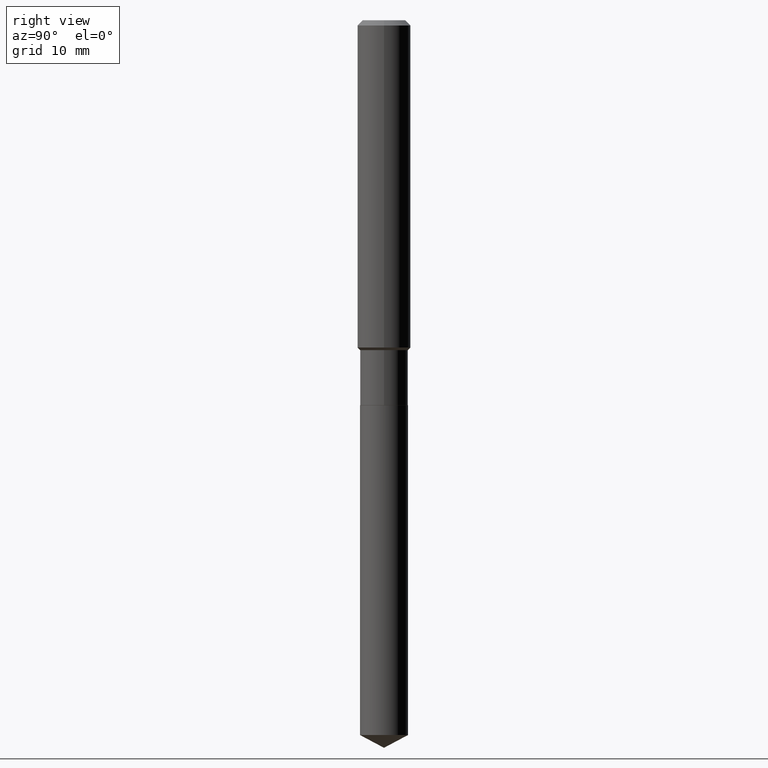
[diagram: clean part render]
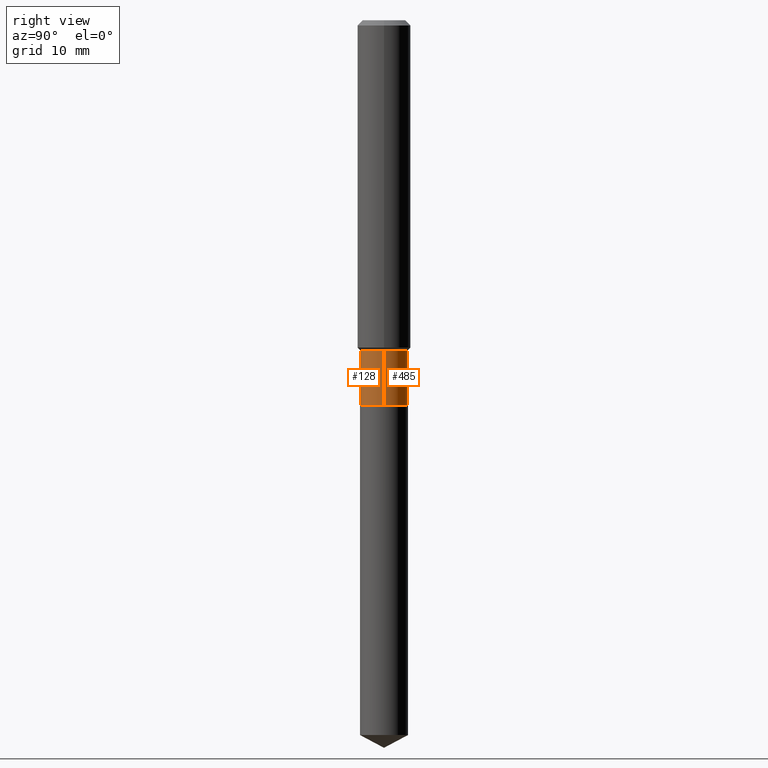
[diagram: same view with one multi-face feature highlighted, each face labeled with its STEP entity id]
A machine part, right view. The highlighted faces form ONE feature: a constant-radius fillet chain: 2 tangent blend faces with common blend radius 2.7 mm. The faces share edges in the B-rep.
Their STEP definitions:
[1] entity #128 (Cylinder):
#9 = LINE ( 'NONE', #266, #476 ) ;
#39 = DIRECTION ( 'NONE',  ( -2.445468806185136877E-29, 3.491481338843145188E-15, 1.000000000000000000 ) ) ;
#44 = DIRECTION ( 'NONE',  ( -2.445468806185136877E-29, 3.491481338843145188E-15, 1.000000000000000000 ) ) ;
#59 = ORIENTED_EDGE ( 'NONE', *, *, #395, .T. ) ;
#76 = LINE ( 'NONE', #224, #271 ) ;
#77 = DIRECTION ( 'NONE',  ( -2.445468806185136597E-29, 3.491481338843145583E-15, 1.000000000000000000 ) ) ;
#91 = CARTESIAN_POINT ( 'NONE',  ( -0.1062999999999999640, -4.782531623426127570E-15, -1.464100000000000179 ) ) ;
#112 = VERTEX_POINT ( 'NONE', #91 ) ;
#117 = DIRECTION ( 'NONE',  ( -2.445468806185136597E-29, 3.491481338843145583E-15, 1.000000000000000000 ) ) ;
#128 = ADVANCED_FACE ( 'NONE', ( #408 ), #189, .T. ) ;
#154 = CARTESIAN_POINT ( 'NONE',  ( 0.000000000000000000, 0.000000000000000000, 0.000000000000000000 ) ) ;
#156 = VERTEX_POINT ( 'NONE', #292 ) ;
#157 = CARTESIAN_POINT ( 'NONE',  ( 0.1062999999999999640, -5.854166760838299626E-15, -1.464100000000000179 ) ) ;
#167 = ORIENTED_EDGE ( 'NONE', *, *, #260, .F. ) ;
#178 = DIRECTION ( 'NONE',  ( 1.000000000000000000, -6.982962677686267499E-15, 4.876176775795935232E-29 ) ) ;
#181 = AXIS2_PLACEMENT_3D ( 'NONE', #154, #77, #178 ) ;
#189 = CYLINDRICAL_SURFACE ( 'NONE', #181, 0.1062999999999999917 ) ;
#191 = AXIS2_PLACEMENT_3D ( 'NONE', #343, #228, #303 ) ;
#213 = CIRCLE ( 'NONE', #191, 0.1063000000000000056 ) ;
#224 = CARTESIAN_POINT ( 'NONE',  ( 0.1062999999999999917, -7.422889326380501387E-16, 5.183375912671078649E-30 ) ) ;
#228 = DIRECTION ( 'NONE',  ( -2.445468806185136597E-29, 3.491481338843145583E-15, 1.000000000000000000 ) ) ;
#260 = EDGE_CURVE ( 'NONE', #156, #112, #9, .T. ) ;
#266 = CARTESIAN_POINT ( 'NONE',  ( -0.1062999999999999917, 7.553069281129864387E-16, -5.228828000940964357E-30 ) ) ;
#271 = VECTOR ( 'NONE', #39, 39.37007874015748143 ) ;
#290 = ORIENTED_EDGE ( 'NONE', *, *, #483, .T. ) ;
#292 = CARTESIAN_POINT ( 'NONE',  ( -0.1063000000000000056, -4.782531623426127570E-15, -1.708100000000000174 ) ) ;
#297 = CARTESIAN_POINT ( 'NONE',  ( 0.1063000000000000056, -6.706088207516028077E-15, -1.708100000000000174 ) ) ;
#303 = DIRECTION ( 'NONE',  ( 1.000000000000000000, -6.982962677686269077E-15, 0.000000000000000000 ) ) ;
#323 = CIRCLE ( 'NONE', #380, 0.1062999999999999640 ) ;
#343 = CARTESIAN_POINT ( 'NONE',  ( 4.177105267844832684E-29, -5.963799274877977939E-15, -1.708100000000000174 ) ) ;
#358 = VERTEX_POINT ( 'NONE', #297 ) ;
#364 = EDGE_CURVE ( 'NONE', #112, #449, #323, .T. ) ;
#380 = AXIS2_PLACEMENT_3D ( 'NONE', #450, #117, #486 ) ;
#395 = EDGE_CURVE ( 'NONE', #358, #449, #76, .T. ) ;
#398 = ORIENTED_EDGE ( 'NONE', *, *, #364, .F. ) ;
#408 = FACE_OUTER_BOUND ( 'NONE', #475, .T. ) ;
#449 = VERTEX_POINT ( 'NONE', #157 ) ;
#450 = CARTESIAN_POINT ( 'NONE',  ( 3.580410879135658789E-29, -5.111877828200250276E-15, -1.464100000000000179 ) ) ;
#475 = EDGE_LOOP ( 'NONE', ( #167, #290, #59, #398 ) ) ;
#476 = VECTOR ( 'NONE', #44, 39.37007874015748143 ) ;
#483 = EDGE_CURVE ( 'NONE', #156, #358, #213, .T. ) ;
#486 = DIRECTION ( 'NONE',  ( 1.000000000000000000, -6.982962677686263555E-15, 0.000000000000000000 ) ) ;
[2] entity #485 (Cylinder):
#2 = CIRCLE ( 'NONE', #230, 0.1063000000000000056 ) ;
#7 = ORIENTED_EDGE ( 'NONE', *, *, #51, .F. ) ;
#8 = FACE_OUTER_BOUND ( 'NONE', #237, .T. ) ;
#9 = LINE ( 'NONE', #266, #476 ) ;
#39 = DIRECTION ( 'NONE',  ( -2.445468806185136877E-29, 3.491481338843145188E-15, 1.000000000000000000 ) ) ;
#44 = DIRECTION ( 'NONE',  ( -2.445468806185136877E-29, 3.491481338843145188E-15, 1.000000000000000000 ) ) ;
#51 = EDGE_CURVE ( 'NONE', #449, #112, #188, .T. ) ;
#76 = LINE ( 'NONE', #224, #271 ) ;
#91 = CARTESIAN_POINT ( 'NONE',  ( -0.1062999999999999640, -4.782531623426127570E-15, -1.464100000000000179 ) ) ;
#112 = VERTEX_POINT ( 'NONE', #91 ) ;
#141 = CARTESIAN_POINT ( 'NONE',  ( 3.580410879135658789E-29, -5.111877828200250276E-15, -1.464100000000000179 ) ) ;
#145 = DIRECTION ( 'NONE',  ( 1.000000000000000000, -6.982962677686263555E-15, 0.000000000000000000 ) ) ;
#156 = VERTEX_POINT ( 'NONE', #292 ) ;
#157 = CARTESIAN_POINT ( 'NONE',  ( 0.1062999999999999640, -5.854166760838299626E-15, -1.464100000000000179 ) ) ;
#188 = CIRCLE ( 'NONE', #247, 0.1062999999999999640 ) ;
#195 = DIRECTION ( 'NONE',  ( 1.000000000000000000, -6.982962677686269077E-15, 0.000000000000000000 ) ) ;
#201 = ORIENTED_EDGE ( 'NONE', *, *, #277, .T. ) ;
#216 = ORIENTED_EDGE ( 'NONE', *, *, #395, .F. ) ;
#224 = CARTESIAN_POINT ( 'NONE',  ( 0.1062999999999999917, -7.422889326380501387E-16, 5.183375912671078649E-30 ) ) ;
#230 = AXIS2_PLACEMENT_3D ( 'NONE', #234, #351, #195 ) ;
#234 = CARTESIAN_POINT ( 'NONE',  ( 4.177105267844832684E-29, -5.963799274877977939E-15, -1.708100000000000174 ) ) ;
#237 = EDGE_LOOP ( 'NONE', ( #201, #477, #7, #216 ) ) ;
#247 = AXIS2_PLACEMENT_3D ( 'NONE', #141, #399, #145 ) ;
#249 = AXIS2_PLACEMENT_3D ( 'NONE', #456, #265, #291 ) ;
#260 = EDGE_CURVE ( 'NONE', #156, #112, #9, .T. ) ;
#265 = DIRECTION ( 'NONE',  ( -2.445468806185136597E-29, 3.491481338843145583E-15, 1.000000000000000000 ) ) ;
#266 = CARTESIAN_POINT ( 'NONE',  ( -0.1062999999999999917, 7.553069281129864387E-16, -5.228828000940964357E-30 ) ) ;
#271 = VECTOR ( 'NONE', #39, 39.37007874015748143 ) ;
#277 = EDGE_CURVE ( 'NONE', #358, #156, #2, .T. ) ;
#291 = DIRECTION ( 'NONE',  ( 1.000000000000000000, -6.982962677686267499E-15, 4.876176775795935232E-29 ) ) ;
#292 = CARTESIAN_POINT ( 'NONE',  ( -0.1063000000000000056, -4.782531623426127570E-15, -1.708100000000000174 ) ) ;
#297 = CARTESIAN_POINT ( 'NONE',  ( 0.1063000000000000056, -6.706088207516028077E-15, -1.708100000000000174 ) ) ;
#305 = CYLINDRICAL_SURFACE ( 'NONE', #249, 0.1062999999999999917 ) ;
#351 = DIRECTION ( 'NONE',  ( -2.445468806185136597E-29, 3.491481338843145583E-15, 1.000000000000000000 ) ) ;
#358 = VERTEX_POINT ( 'NONE', #297 ) ;
#395 = EDGE_CURVE ( 'NONE', #358, #449, #76, .T. ) ;
#399 = DIRECTION ( 'NONE',  ( -2.445468806185136597E-29, 3.491481338843145583E-15, 1.000000000000000000 ) ) ;
#449 = VERTEX_POINT ( 'NONE', #157 ) ;
#456 = CARTESIAN_POINT ( 'NONE',  ( 0.000000000000000000, 0.000000000000000000, 0.000000000000000000 ) ) ;
#476 = VECTOR ( 'NONE', #44, 39.37007874015748143 ) ;
#477 = ORIENTED_EDGE ( 'NONE', *, *, #260, .T. ) ;
#485 = ADVANCED_FACE ( 'NONE', ( #8 ), #305, .T. ) ;